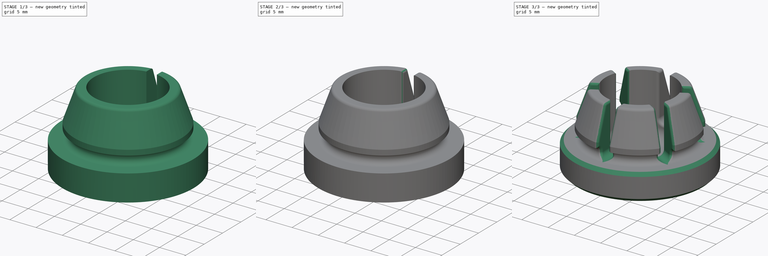
[diagram: build sequence overview — one tinted view per stage of 3, left to right]
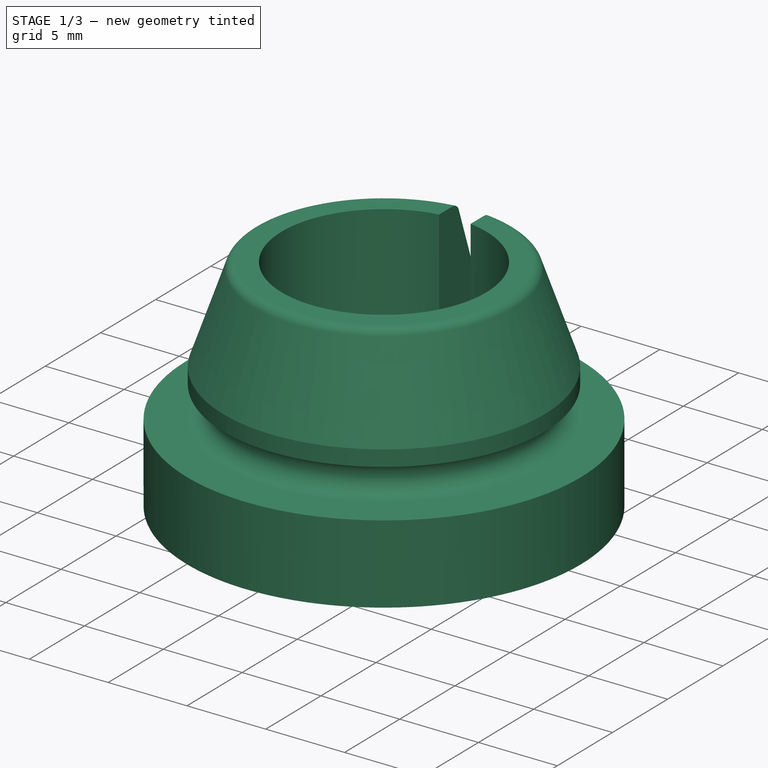
[diagram: stage 1 of 3 — iso view after this stage's code; geometry added in this stage tinted green]
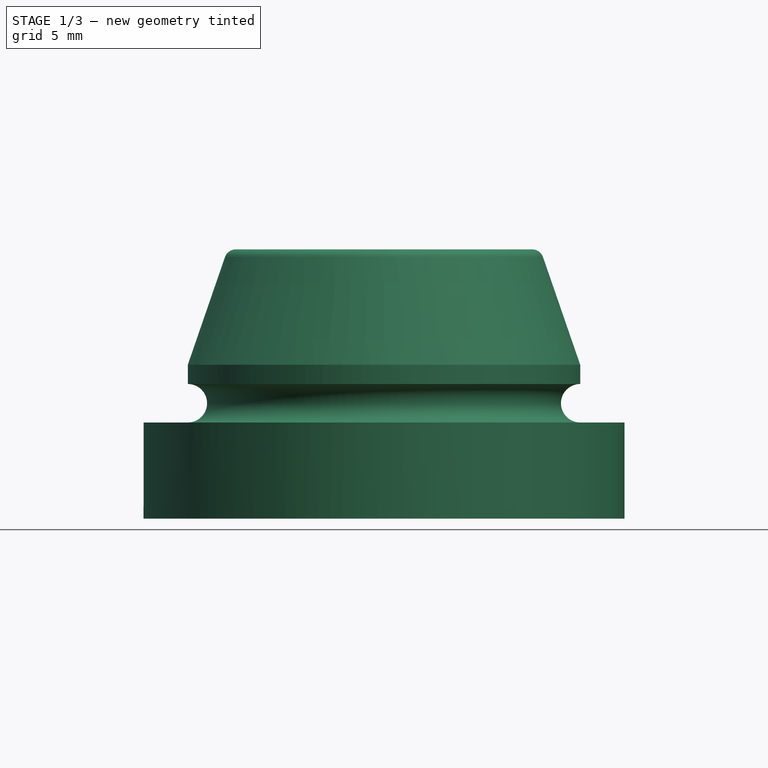
[diagram: stage 1 of 3 — front view after this stage's code; geometry added in this stage tinted green]
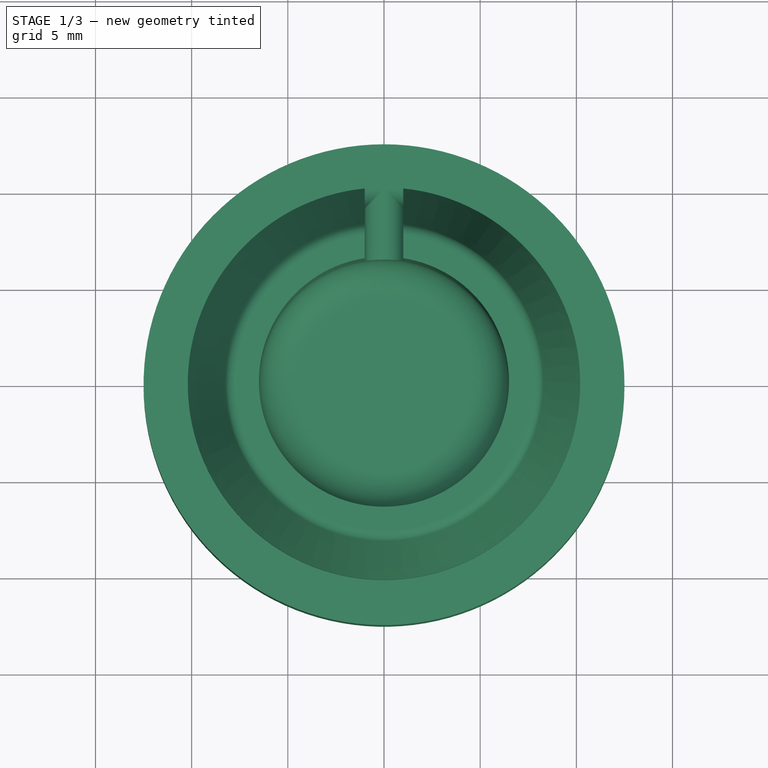
[diagram: stage 1 of 3 — top view after this stage's code; geometry added in this stage tinted green]
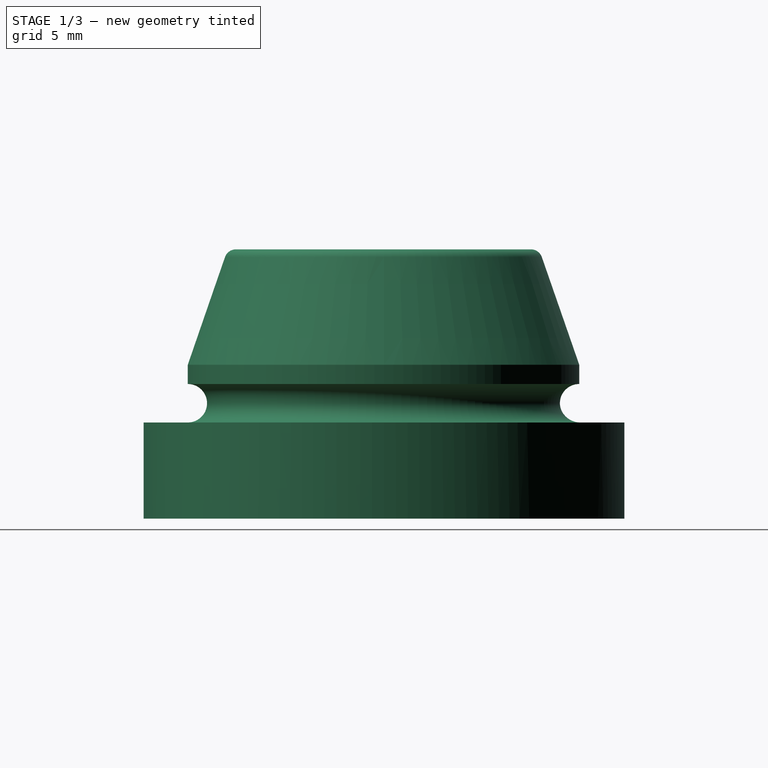
[diagram: stage 1 of 3 — right view after this stage's code; geometry added in this stage tinted green]
FCSTD DOCUMENT  (FreeCAD 1.2R20260609 (Git shallow))
Label: Pieds chaise Marie
License: Creative Commons Attribution-NonCommercial-ShareAlike 4.0
LicenseURL: https://creativecommons.org/licenses/by-nc-sa/4.0/
objects: Sketcher::SketchObject×2, App::Point×1, PartDesign::Revolution×1, PartDesign::Pocket×1, PartDesign::Fillet×1, PartDesign::PolarPattern×1, PartDesign::Chamfer×1, PartDesign::Body×1
note: 19 computed .brp shape members not serialized (recipe doc carries the construction recipe); baked Part::Feature solids carry a one-line shape summary decoded from their .brp

FEATURE [App::Point] Origin001  label="Origine"
  Role = Origin
FEATURE [Sketcher::SketchObject] Sketch
  ArcFitTolerance = 1e-06
  AttachmentSupport = -> [Origin]
  ExternalTypes = [0]
  FullyConstrained = true
  MakeInternals = false
  MapMode = 5
  Placement = pos=(0,0,0) rot=(1,0,0;1.5708rad)
  expr: Constraints[11] = 25 / 2
  expr: Constraints[31] = 13 / 2
  sketch-geometry (13):
    g0: LineSegment StartX=0 StartY=2.4 StartZ=0 EndX=0 EndY=0 EndZ=0
    g1: LineSegment StartX=0 StartY=0 StartZ=0 EndX=12.5 EndY=0 EndZ=0
    g2: LineSegment StartX=12.5 StartY=0 StartZ=0 EndX=12.5 EndY=5 EndZ=0
    g3: LineSegment StartX=12.5 StartY=5 StartZ=0 EndX=10.2 EndY=5 EndZ=0
    g4: ArcOfCircle CenterX=10.2 CenterY=6 CenterZ=0 NormalX=0 NormalY=0 NormalZ=1 AngleXU=0 Radius=1 StartAngle=1.5708 EndAngle=4.71239
    g5: LineSegment StartX=10.2 StartY=8 StartZ=0 EndX=8.26712 EndY=13.5959 EndZ=0
    g6: LineSegment StartX=6.5 StartY=14 StartZ=0 EndX=6.5 EndY=4.4 EndZ=0
    g7: ArcOfCircle CenterX=7.7 CenterY=13.4 CenterZ=0 NormalX=0 NormalY=0 NormalZ=1 AngleXU=0 Radius=0.6 StartAngle=0.33258 EndAngle=1.5708
    g8: LineSegment StartX=6.5 StartY=14 StartZ=0 EndX=7.7 EndY=14 EndZ=0
    g9: GeomPoint X=9.2 Y=6 Z=0
    g10: LineSegment StartX=10.2 StartY=8 StartZ=0 EndX=10.2 EndY=7 EndZ=0
    g11: ArcOfCircle CenterX=4.5 CenterY=4.4 CenterZ=0 NormalX=0 NormalY=0 NormalZ=1 AngleXU=0 Radius=2 StartAngle=4.71239 EndAngle=6.28319
    g12: LineSegment StartX=0 StartY=2.4 StartZ=0 EndX=4.5 EndY=2.4 EndZ=0
  constraints (36):
    c: PointOnObject(g0,g-2)
    c: Coincident(g0,g-1)
    c: Coincident(g0,g1)
    c: PointOnObject(g1,g-1)
    c: Coincident(g1,g2)
    c: Vertical(g2)
    c: Coincident(g2,g3)
    c: Horizontal(g3)
    c: Tangent(g3,g4) = 1.5708
    c: Vertical(g6)
    c: Radius(g4) = 1
    c: DistanceX(g1,g1) = 12.5
    c: Distance(g6,g-1) = 14
    c: Distance(g2,g2) = 5
    c: Coincident(g8,g6)
    c: Horizontal(g8)
    c: Radius(g7) = 0.6
    c: PointOnObject(g9,g4)
    c: DistanceX(g-1,g9) = 9.2
    c: DistanceX(g-1,g4) = 10.2
    c: Horizontal(g9,g4)
    c: Tangent(g8,g7) = 1.5708
    c: Coincident(g10,g5)
    c: Coincident(g10,g4)
    c: Vertical(g10)
    c: Distance(g10,g10) = 1
    c: Vertical(g4,g4)
    c: Tangent(g7,g5) = -1.5708
    c: Distance(g8,g8) = 1.2
    c: Coincident(g12,g0)
    c: Tangent(g12,g11) = -1.5708
    c: DistanceX(g-1,g6) = 6.5
    c: Horizontal(g12)
    c: Distance(g0,g0) = 2.4
    c: Tangent(g11,g6) = 1.5708
    c: Radius(g11) = 2
FEATURE [PartDesign::Revolution] Revolution
  Angle = 360
  Angle2 = 0
  Axis = (0,2e-16,1)
  Base = (0,0,0)
  FuseOrder = 0
  FuzzyTolerance = 0
  Profile = -> Sketch
  ReferenceAxis = -> Sketch [V_Axis]
  Refine = true
  Reversed = true
  Suppressed = false
  Type = 0
FEATURE [Sketcher::SketchObject] Sketch001
  ArcFitTolerance = 1e-06
  AttachmentSupport = -> [Origin]
  ExternalGeometry = -> [Revolution]
  ExternalTypes = [0,0]
  FullyConstrained = true
  MakeInternals = false
  MapMode = 5
  Placement = pos=(0,0,0) rot=(1,0,0;1.5708rad)
  sketch-geometry (4):
    g0: ArcOfCircle CenterX=0 CenterY=14 CenterZ=0 NormalX=0 NormalY=0 NormalZ=1 AngleXU=0 Radius=1 StartAngle=1.9e-15 EndAngle=3.14159
    g1: ArcOfCircle CenterX=0 CenterY=6 CenterZ=0 NormalX=0 NormalY=0 NormalZ=1 AngleXU=0 Radius=1 StartAngle=3.14159 EndAngle=6.28319
    g2: LineSegment StartX=1 StartY=14 StartZ=0 EndX=1 EndY=6 EndZ=0
    g3: LineSegment StartX=-1 StartY=14 StartZ=0 EndX=-1 EndY=6 EndZ=0
  constraints (10):
    c: Tangent(g0,g2) = 1.5708
    c: Tangent(g0,g3) = -1.5708
    c: Tangent(g1,g2) = 1.5708
    c: Tangent(g1,g3) = -1.5708
    c: Equal(g0,g1)
    c: PointOnObject(g0,g-2)
    c: PointOnObject(g1,g-2)
    c: Tangent(g1,g-3)
    c: Radius(g0) = 1
    c: PointOnObject(g0,g-4)
FEATURE [PartDesign::Pocket] Pocket
  BaseFeature = -> Revolution
  Direction = (0,1,-2e-16)
  FuzzyTolerance = 0
  Length = 5
  Length2 = 5
  Profile = -> Sketch001
  ReferenceAxis = -> Sketch001 [N_Axis]
  Refine = true
  SideType = 0
  Suppressed = false
  Type = 1
  Type2 = 0
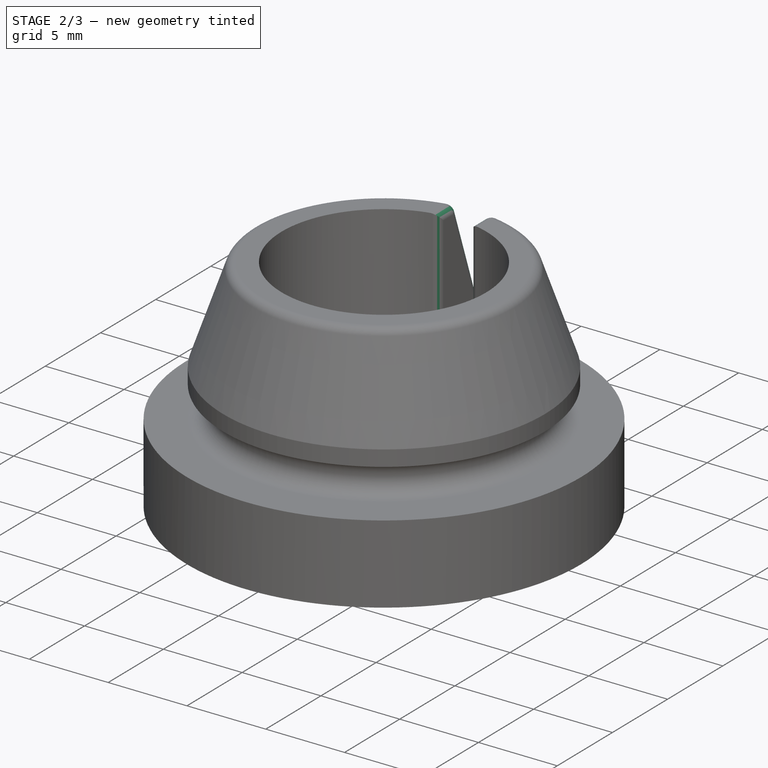
[diagram: stage 2 of 3 — iso view after this stage's code; geometry added in this stage tinted green]
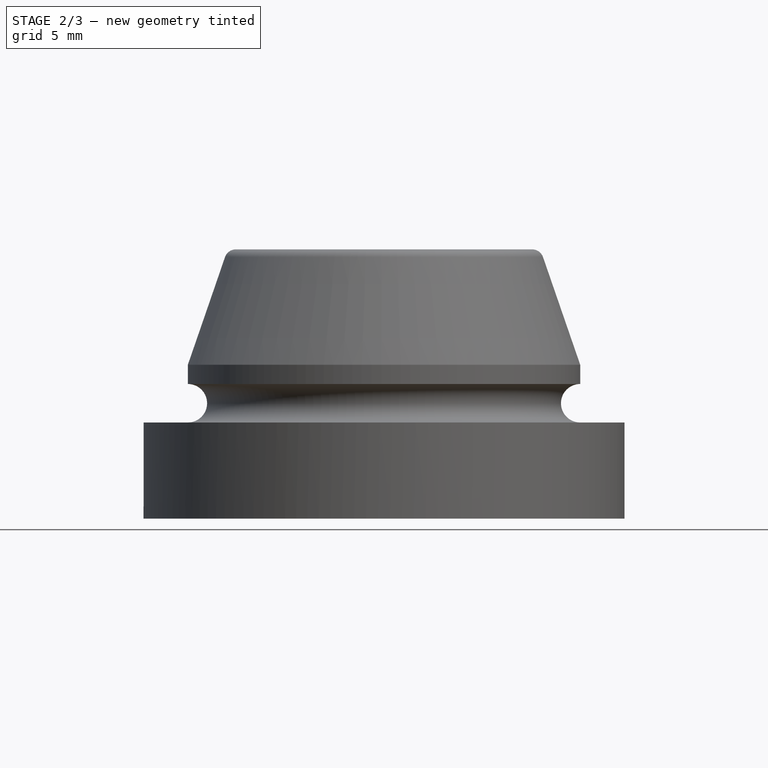
[diagram: stage 2 of 3 — front view after this stage's code; geometry added in this stage tinted green]
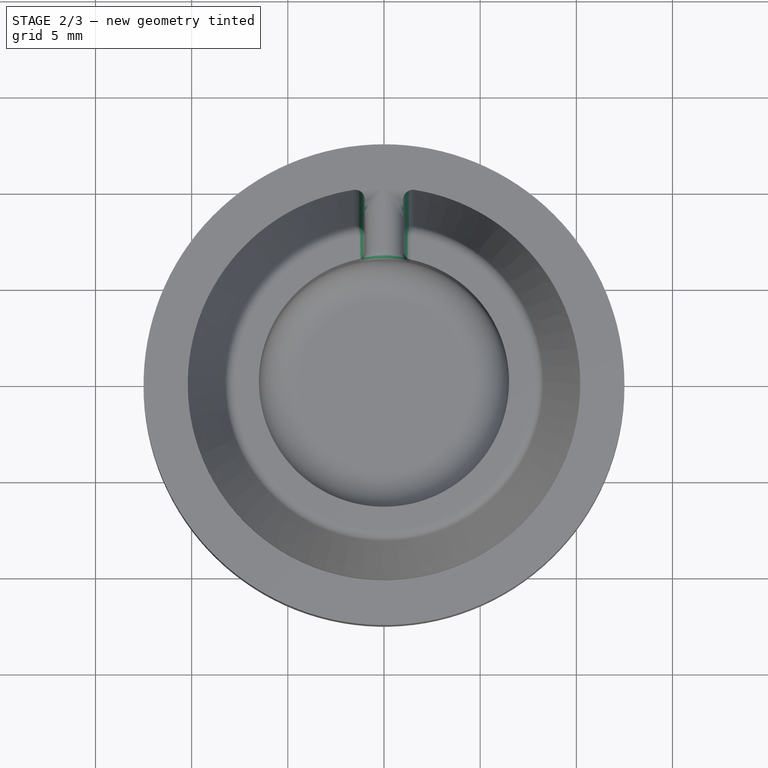
[diagram: stage 2 of 3 — top view after this stage's code; geometry added in this stage tinted green]
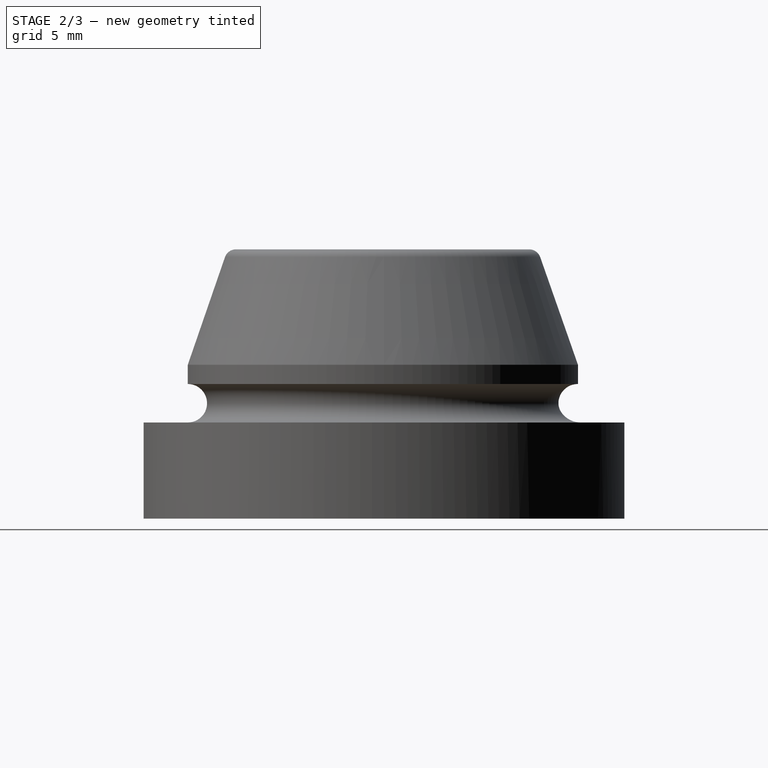
[diagram: stage 2 of 3 — right view after this stage's code; geometry added in this stage tinted green]
FEATURE [PartDesign::Fillet] Fillet
  Base = -> Pocket [Face8,Face6]
  BaseFeature = -> Pocket
  FuzzyTolerance = 0
  Radius = 0.5
  Refine = true
  SupportTransform = false
  Suppressed = false
  UseAllEdges = false
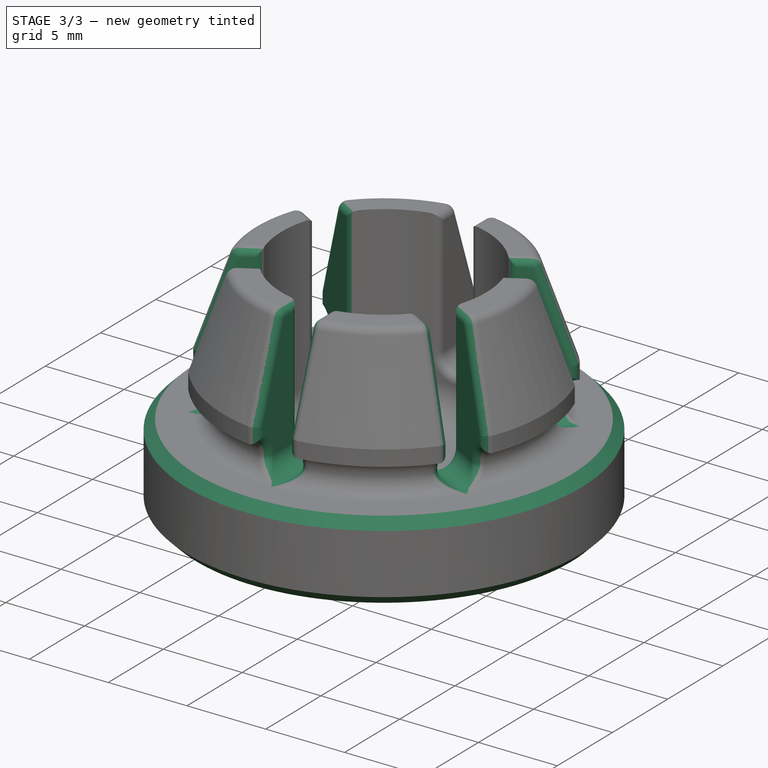
[diagram: stage 3 of 3 — iso view after this stage's code; geometry added in this stage tinted green]
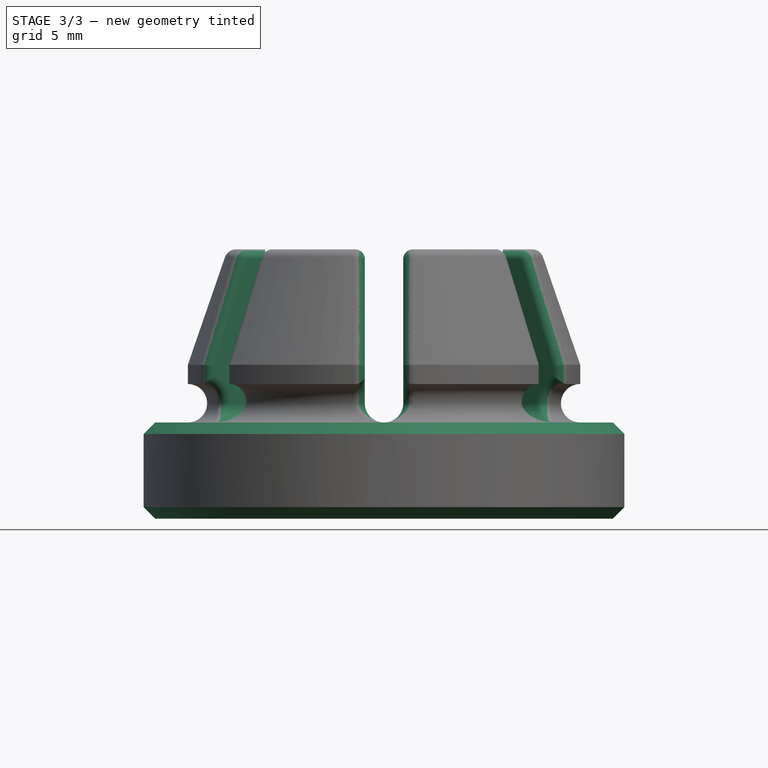
[diagram: stage 3 of 3 — front view after this stage's code; geometry added in this stage tinted green]
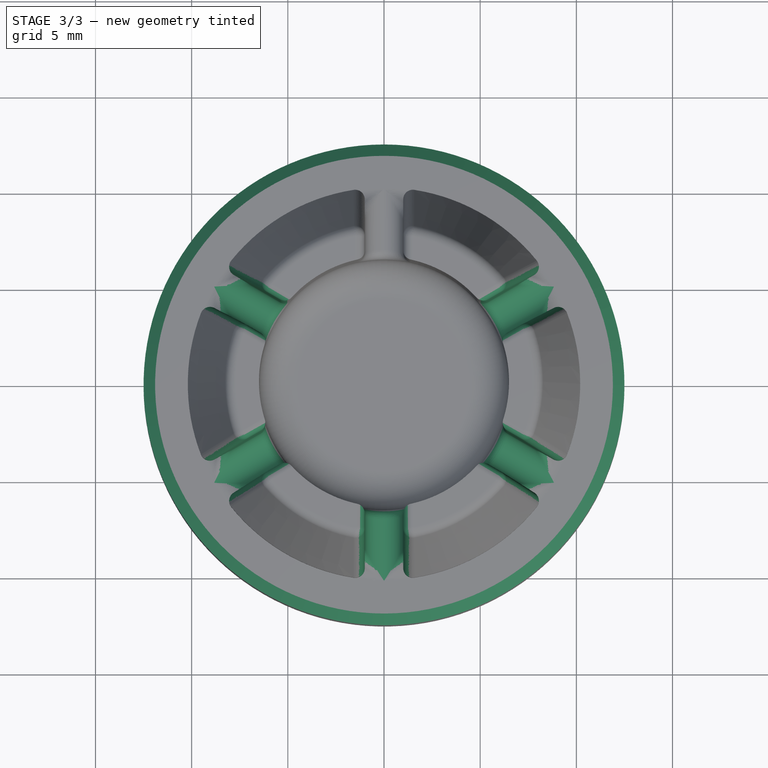
[diagram: stage 3 of 3 — top view after this stage's code; geometry added in this stage tinted green]
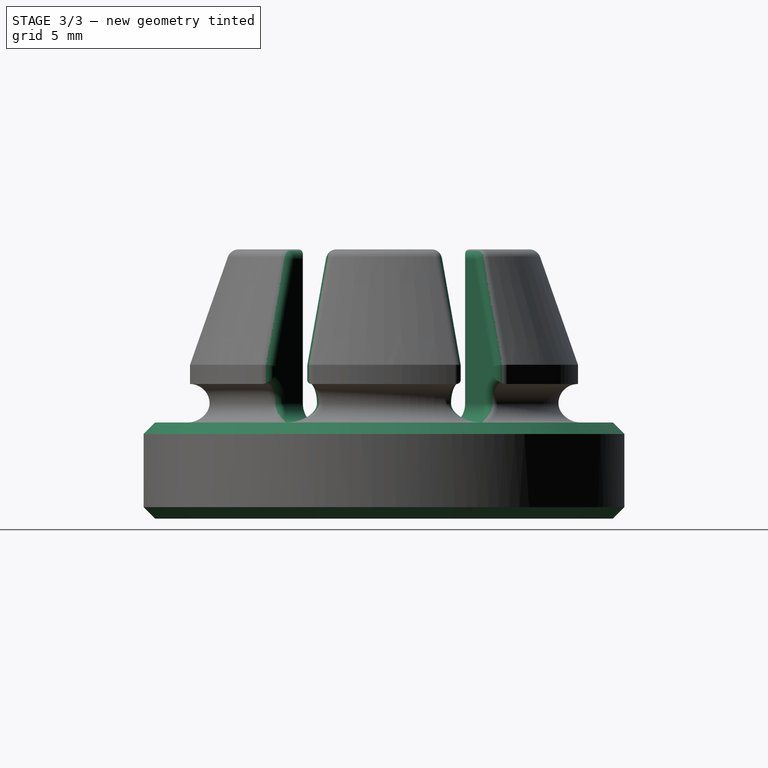
[diagram: stage 3 of 3 — right view after this stage's code; geometry added in this stage tinted green]
FEATURE [PartDesign::PolarPattern] PolarPattern
  Angle = 360
  Axis = -> Z_Axis
  BaseFeature = -> Fillet
  FuzzyTolerance = 0
  Mode = 0
  Occurrences = 6
  Offset = 120
  Originals = -> [Pocket,Fillet]
  Refine = true
  SpacingPattern = [0]
  Spacings = [-1,-1,-1,-1,-1]
  Suppressed = false
  TransformMode = 0
FEATURE [PartDesign::Chamfer] Chamfer
  Angle = 45
  Base = -> PolarPattern [Face1]
  BaseFeature = -> PolarPattern
  ChamferType = 0
  FlipDirection = false
  FuzzyTolerance = 0
  Refine = true
  Size = 0.6
  Size2 = 1
  SupportTransform = false
  Suppressed = false
  UseAllEdges = false
FEATURE [PartDesign::Body] Body  label="Corps"
  AllowCompound = false
  Group = -> [Sketch,Sketch001,Revolution,Pocket,Fillet,PolarPattern,Chamfer]
  Origin = -> Origin
  Tip = -> Chamfer
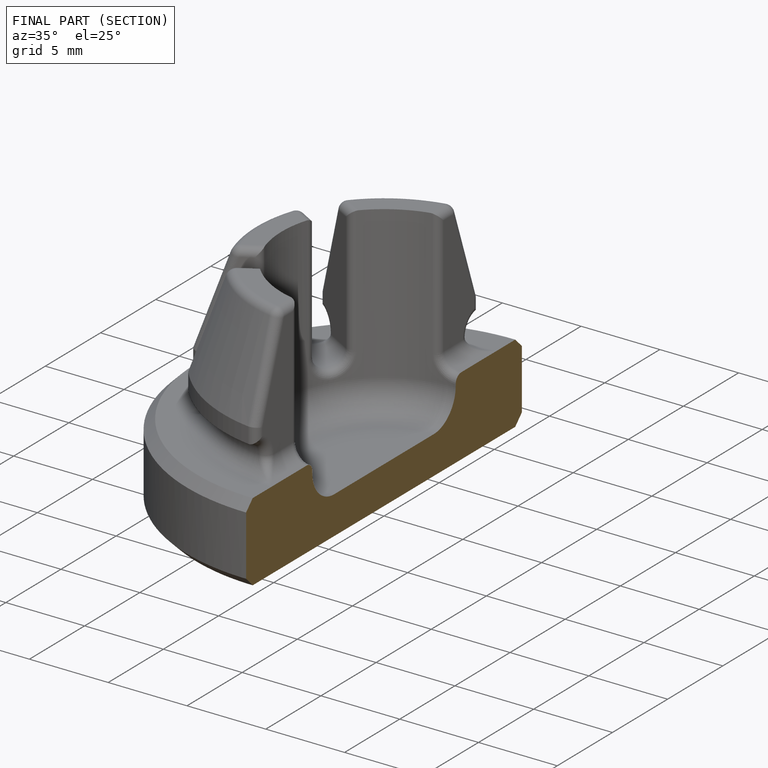
[diagram: finished part — half-section view (interior)]
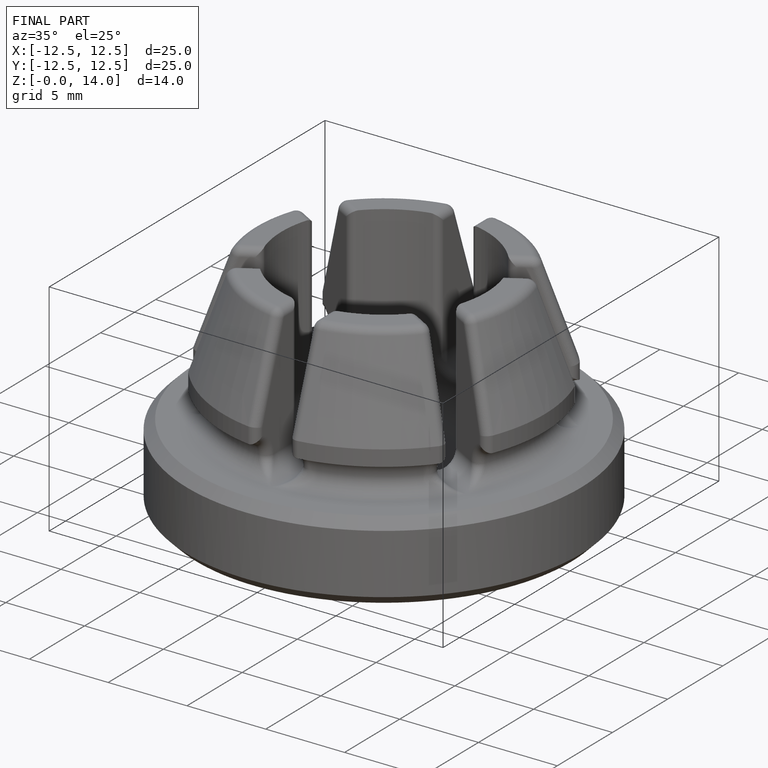
[diagram: finished part — iso view with bounding-box wireframe]
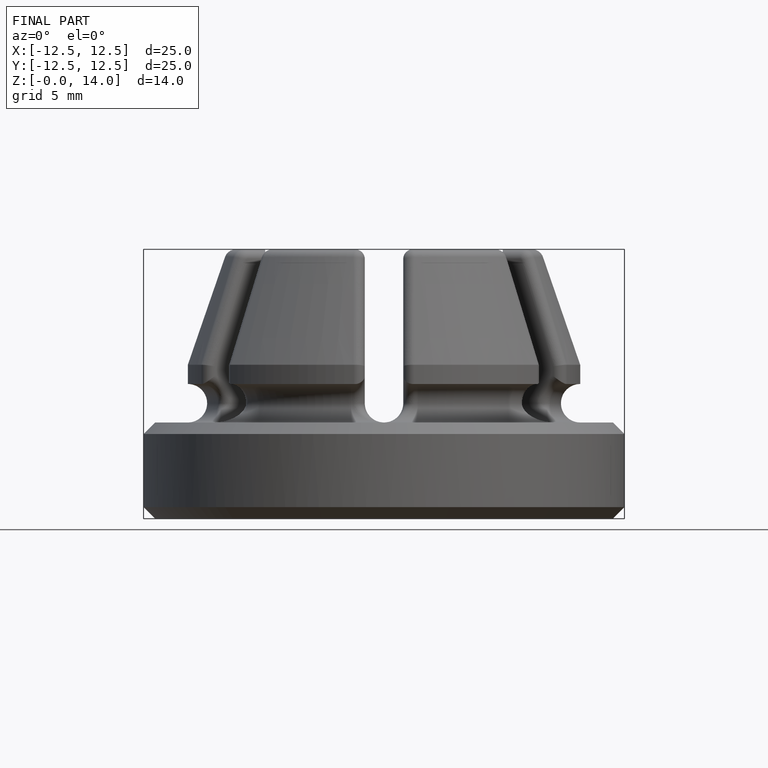
[diagram: finished part — front view with bounding-box wireframe]
